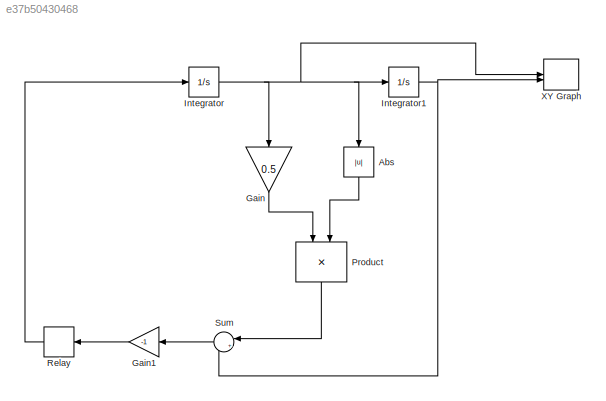
MODEL slx_e37b50430468
KIND model
CONFIG AbsTol = auto
CONFIG EnableMultiTasking = off
CONFIG FixedStep = auto
CONFIG MaxStep = auto
CONFIG MinStep = auto
CONFIG RelTol = 1e-3
CONFIG SampleTimeConstraint = Unconstrained
CONFIG SolverName = VariableStepAuto
CONFIG StartTime = 0.0
CONFIG StopTime = 5
BLOCK [Abs] Abs
  NameLocation = left
  SaturateOnIntegerOverflow = off
BLOCK [Gain] Gain
  Gain = 0.5
  NameLocation = left
BLOCK [Gain] Gain1
  Gain = -1
  NameLocation = top
BLOCK [Integrator] Integrator
  InitialCondition = 1
BLOCK [Integrator] Integrator1
  InitialCondition = -1
BLOCK [Product] Product
  NameLocation = left
BLOCK [Relay] Relay
  NameLocation = top
  OffOutputValue = -1
  OffSwitchValue = 0
  OnSwitchValue = 0
BLOCK [Sum] Sum
  Inputs = |++
  NameLocation = top
BLOCK [Record] XY Graph
  CompatibilityTag = XY
  FileSettingsInternal = {"entries":[{"content":{"excelSettings":{"content":{},"type":"Streamout.ExcelSettings"}},"type":"Streamout.FileSettingStorage","uuid":""}],"packageUris":["http:\/\/schema.mathworks.com\/mf0\/streamout_blocks\/R2020a"],"version":"1.0"}
  Layout = [1 1]
  NameLocation = top
  SignalsInternal = {"entries":[{"content":{"signals":[{"content":{"blockPath":[],"dimensions":[1],"domain":"","lineColor":"#a2142f","plots":[1],"port":1,"sid":[""],"signalID":88,"signalName":"Integrator"},"type":"RecordBlkView.Signal","uuid":""},{"content":{"blockPath":[],"dimensions":[1],"domain":"","lineColor":"#139fff","plots":[1],"port":2,"sid":[""],"signalID":92,"signalName":"Integrator1"},"type":"RecordBlkView...<+165ch>
  VisualizationBindings = {"xyplotplugin":{"info":[{"series":[{"bindingParametersList":[{"parameter":"X-Axis","signalID":88,"signalName":"Integrator"},{"parameter":"Y-Axis","signalID":92,"signalName":"Integrator1"}],"seriesID":33149}],"subplotID":1}]}}
LINE Abs:1 -> Product:2
LINE Gain1:1 -> Relay:1
LINE Gain:1 -> Product:1
NET Integrator1:1 -> Sum:2, XY Graph:2
NET Integrator:1 -> Abs:1, Gain:1, Integrator1:1, XY Graph:1
LINE Product:1 -> Sum:1
LINE Relay:1 -> Integrator:1
LINE Sum:1 -> Gain1:1
note: NET lines group one-source signal fan-out (src -> all destinations, sorted); 1:1 wires keep LINE
